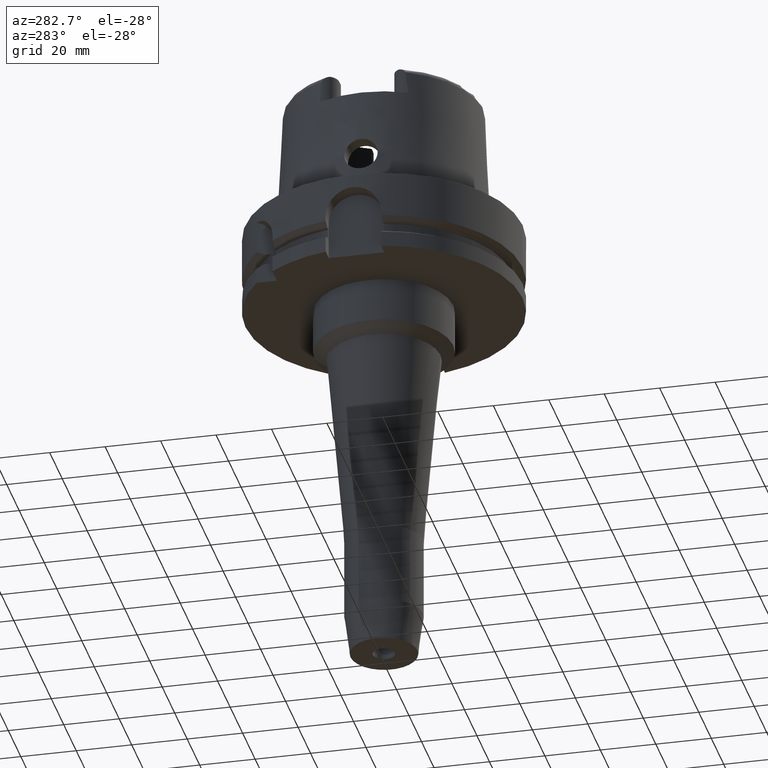
[diagram: clean part render]
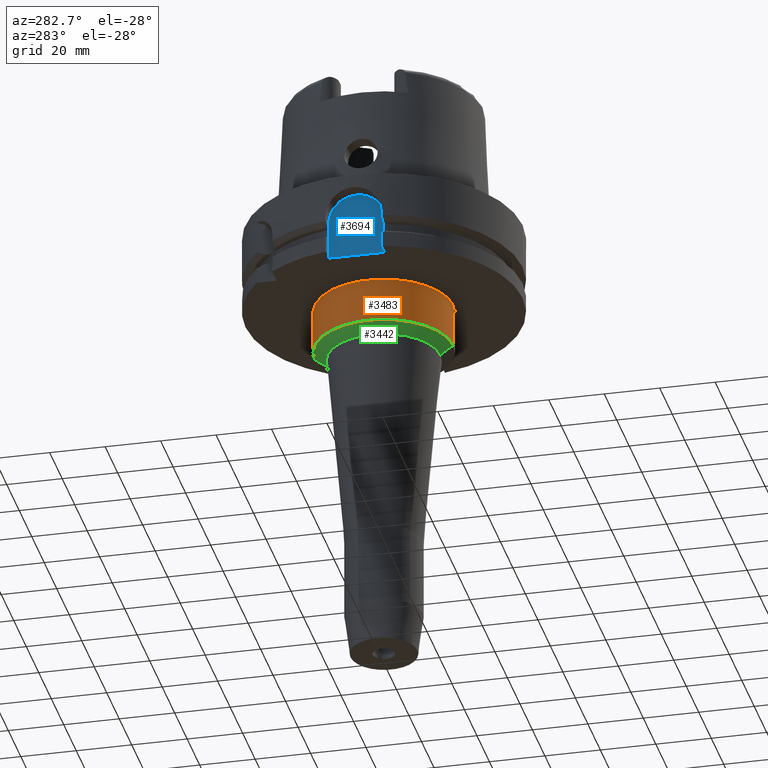
[diagram: same view with three faces highlighted in distinct colors, each labeled with its STEP entity id]
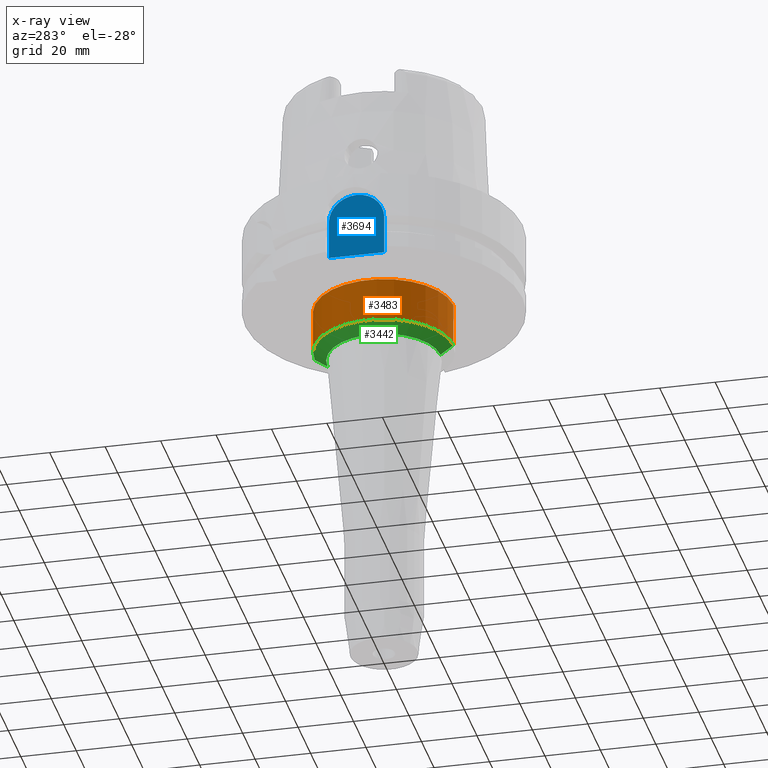
[diagram: x-ray of the same camera — body ghosted, the three highlighted faces saturated]
A machine part, auxiliary view with three faces highlighted in distinct colors.
The next image is the same camera in x-ray (body ghosted, the three faces saturated) — at least one of them is partly hidden behind the body in this view.
Their STEP definitions:

[orange] entity #3483 — the highlighted cylindrical surface (partial cylindrical patch) has radius 25 mm, axis along (0, 0, 1).
#1173=CARTESIAN_POINT('',(0.E0,0.E0,-4.5E1));
#1174=DIRECTION('',(0.E0,0.E0,1.E0));
#1175=DIRECTION('',(0.E0,1.E0,0.E0));
#1176=AXIS2_PLACEMENT_3D('',#1173,#1174,#1175);
#1211=DIRECTION('',(0.E0,9.170442183403E-14,-1.E0));
#1212=VECTOR('',#1211,1.6E1);
#1213=CARTESIAN_POINT('',(0.E0,2.5E1,-2.9E1));
#1214=LINE('',#1213,#1212);
#1218=DIRECTION('',(0.E0,-9.170442183403E-14,-1.E0));
#1219=VECTOR('',#1218,1.6E1);
#1220=CARTESIAN_POINT('',(0.E0,-2.5E1,-2.9E1));
#1221=LINE('',#1220,#1219);
#1286=CARTESIAN_POINT('',(0.E0,0.E0,-2.9E1));
#1287=DIRECTION('',(0.E0,0.E0,-1.E0));
#1288=DIRECTION('',(0.E0,-1.E0,0.E0));
#1289=AXIS2_PLACEMENT_3D('',#1286,#1287,#1288);
#2421=CARTESIAN_POINT('',(0.E0,2.5E1,-4.5E1));
#2422=VERTEX_POINT('',#2421);
#2423=CARTESIAN_POINT('',(0.E0,-2.5E1,-4.5E1));
#2424=VERTEX_POINT('',#2423);
#2425=CARTESIAN_POINT('',(0.E0,2.5E1,-2.9E1));
#2426=VERTEX_POINT('',#2425);
#2427=CARTESIAN_POINT('',(0.E0,-2.5E1,-2.9E1));
#2428=VERTEX_POINT('',#2427);
#3471=CARTESIAN_POINT('',(0.E0,0.E0,-1.7575E2));
#3472=DIRECTION('',(0.E0,0.E0,1.E0));
#3473=DIRECTION('',(0.E0,1.E0,0.E0));
#3474=AXIS2_PLACEMENT_3D('',#3471,#3472,#3473);
#3475=CYLINDRICAL_SURFACE('',#3474,2.5E1);
#3476=ORIENTED_EDGE('',*,*,#3461,.F.);
#3478=ORIENTED_EDGE('',*,*,#3477,.F.);
#3479=ORIENTED_EDGE('',*,*,#3464,.T.);
#3480=ORIENTED_EDGE('',*,*,#3435,.F.);
#3481=EDGE_LOOP('',(#3476,#3478,#3479,#3480));
#3482=FACE_OUTER_BOUND('',#3481,.F.);
#1177=CIRCLE('',#1176,2.5E1);
#1290=CIRCLE('',#1289,2.5E1);
#3435=EDGE_CURVE('',#2422,#2424,#1177,.T.);
#3461=EDGE_CURVE('',#2426,#2422,#1214,.T.);
#3464=EDGE_CURVE('',#2428,#2424,#1221,.T.);
#3477=EDGE_CURVE('',#2428,#2426,#1290,.T.);
#3483=ADVANCED_FACE('',(#3482),#3475,.T.);

[blue] entity #3694 — the highlighted planar face has unit normal (1, 0, 0).
#1427=DIRECTION('',(0.E0,0.E0,1.E0));
#1428=VECTOR('',#1427,1.4E1);
#1429=CARTESIAN_POINT('',(-4.4E1,-1.E1,-2.9E1));
#1430=LINE('',#1429,#1428);
#1441=DIRECTION('',(0.E0,1.E0,0.E0));
#1442=VECTOR('',#1441,2.E1);
#1443=CARTESIAN_POINT('',(-4.4E1,-1.E1,-2.9E1));
#1444=LINE('',#1443,#1442);
#1448=CARTESIAN_POINT('',(-4.4E1,0.E0,-1.5E1));
#1449=DIRECTION('',(1.E0,0.E0,0.E0));
#1450=DIRECTION('',(0.E0,1.E0,0.E0));
#1451=AXIS2_PLACEMENT_3D('',#1448,#1449,#1450);
#1456=CARTESIAN_POINT('',(-4.4E1,0.E0,-1.5E1));
#1457=DIRECTION('',(1.E0,0.E0,0.E0));
#1458=DIRECTION('',(0.E0,0.E0,1.E0));
#1459=AXIS2_PLACEMENT_3D('',#1456,#1457,#1458);
#1478=DIRECTION('',(0.E0,0.E0,-1.E0));
#1479=VECTOR('',#1478,1.4E1);
#1480=CARTESIAN_POINT('',(-4.4E1,1.E1,-1.5E1));
#1481=LINE('',#1480,#1479);
#2437=CARTESIAN_POINT('',(-4.4E1,1.E1,-2.9E1));
#2438=VERTEX_POINT('',#2437);
#2439=CARTESIAN_POINT('',(-4.4E1,-1.E1,-2.9E1));
#2440=VERTEX_POINT('',#2439);
#2483=CARTESIAN_POINT('',(-4.4E1,-1.E1,-1.5E1));
#2484=VERTEX_POINT('',#2483);
#2496=CARTESIAN_POINT('',(-4.4E1,1.E1,-1.5E1));
#2497=VERTEX_POINT('',#2496);
#2498=CARTESIAN_POINT('',(-4.4E1,0.E0,-5.E0));
#2499=VERTEX_POINT('',#2498);
#3679=CARTESIAN_POINT('',(-4.4E1,0.E0,0.E0));
#3680=DIRECTION('',(1.E0,0.E0,0.E0));
#3681=DIRECTION('',(0.E0,0.E0,1.E0));
#3682=AXIS2_PLACEMENT_3D('',#3679,#3680,#3681);
#3683=PLANE('',#3682);
#3684=ORIENTED_EDGE('',*,*,#3497,.T.);
#3686=ORIENTED_EDGE('',*,*,#3685,.F.);
#3688=ORIENTED_EDGE('',*,*,#3687,.T.);
#3690=ORIENTED_EDGE('',*,*,#3689,.T.);
#3691=ORIENTED_EDGE('',*,*,#3659,.F.);
#3692=EDGE_LOOP('',(#3684,#3686,#3688,#3690,#3691));
#3693=FACE_OUTER_BOUND('',#3692,.F.);
#1452=CIRCLE('',#1451,1.E1);
#1460=CIRCLE('',#1459,1.E1);
#3497=EDGE_CURVE('',#2440,#2438,#1444,.T.);
#3659=EDGE_CURVE('',#2440,#2484,#1430,.T.);
#3685=EDGE_CURVE('',#2497,#2438,#1481,.T.);
#3687=EDGE_CURVE('',#2497,#2499,#1452,.T.);
#3689=EDGE_CURVE('',#2499,#2484,#1460,.T.);
#3694=ADVANCED_FACE('',(#3693),#3683,.F.);

[green] entity #3442 — the highlighted conical surface has half-angle 54.681 deg.
#1173=CARTESIAN_POINT('',(0.E0,0.E0,-4.5E1));
#1174=DIRECTION('',(0.E0,0.E0,1.E0));
#1175=DIRECTION('',(0.E0,1.E0,0.E0));
#1176=AXIS2_PLACEMENT_3D('',#1173,#1174,#1175);
#1181=DIRECTION('',(0.E0,8.159459203647E-1,-5.781282340798E-1));
#1182=VECTOR('',#1181,5.684771137225E0);
#1183=CARTESIAN_POINT('',(0.E0,-2.5E1,-4.5E1));
#1184=LINE('',#1183,#1182);
#1188=CARTESIAN_POINT('',(0.E0,0.E0,-4.828652669872E1));
#1189=DIRECTION('',(0.E0,0.E0,-1.E0));
#1190=DIRECTION('',(0.E0,-1.E0,0.E0));
#1191=AXIS2_PLACEMENT_3D('',#1188,#1189,#1190);
#1196=DIRECTION('',(0.E0,-8.159459203647E-1,-5.781282340798E-1));
#1197=VECTOR('',#1196,5.684771137225E0);
#1198=CARTESIAN_POINT('',(0.E0,2.5E1,-4.5E1));
#1199=LINE('',#1198,#1197);
#2417=CARTESIAN_POINT('',(0.E0,2.036153418238E1,-4.828652669871E1));
#2418=VERTEX_POINT('',#2417);
#2419=CARTESIAN_POINT('',(0.E0,-2.036153418238E1,-4.828652669871E1));
#2420=VERTEX_POINT('',#2419);
#2421=CARTESIAN_POINT('',(0.E0,2.5E1,-4.5E1));
#2422=VERTEX_POINT('',#2421);
#2423=CARTESIAN_POINT('',(0.E0,-2.5E1,-4.5E1));
#2424=VERTEX_POINT('',#2423);
#3428=CARTESIAN_POINT('',(0.E0,0.E0,-4.664326334936E1));
#3429=DIRECTION('',(0.E0,0.E0,1.E0));
#3430=DIRECTION('',(0.E0,1.E0,0.E0));
#3431=AXIS2_PLACEMENT_3D('',#3428,#3429,#3430);
#3432=CONICAL_SURFACE('',#3431,2.268076709119E1,5.4681E1);
#3434=ORIENTED_EDGE('',*,*,#3433,.F.);
#3436=ORIENTED_EDGE('',*,*,#3435,.T.);
#3438=ORIENTED_EDGE('',*,*,#3437,.T.);
#3439=ORIENTED_EDGE('',*,*,#3421,.T.);
#3440=EDGE_LOOP('',(#3434,#3436,#3438,#3439));
#3441=FACE_OUTER_BOUND('',#3440,.F.);
#1177=CIRCLE('',#1176,2.5E1);
#1192=CIRCLE('',#1191,2.036153418238E1);
#3421=EDGE_CURVE('',#2420,#2418,#1192,.T.);
#3433=EDGE_CURVE('',#2422,#2418,#1199,.T.);
#3435=EDGE_CURVE('',#2422,#2424,#1177,.T.);
#3437=EDGE_CURVE('',#2424,#2420,#1184,.T.);
#3442=ADVANCED_FACE('',(#3441),#3432,.T.);